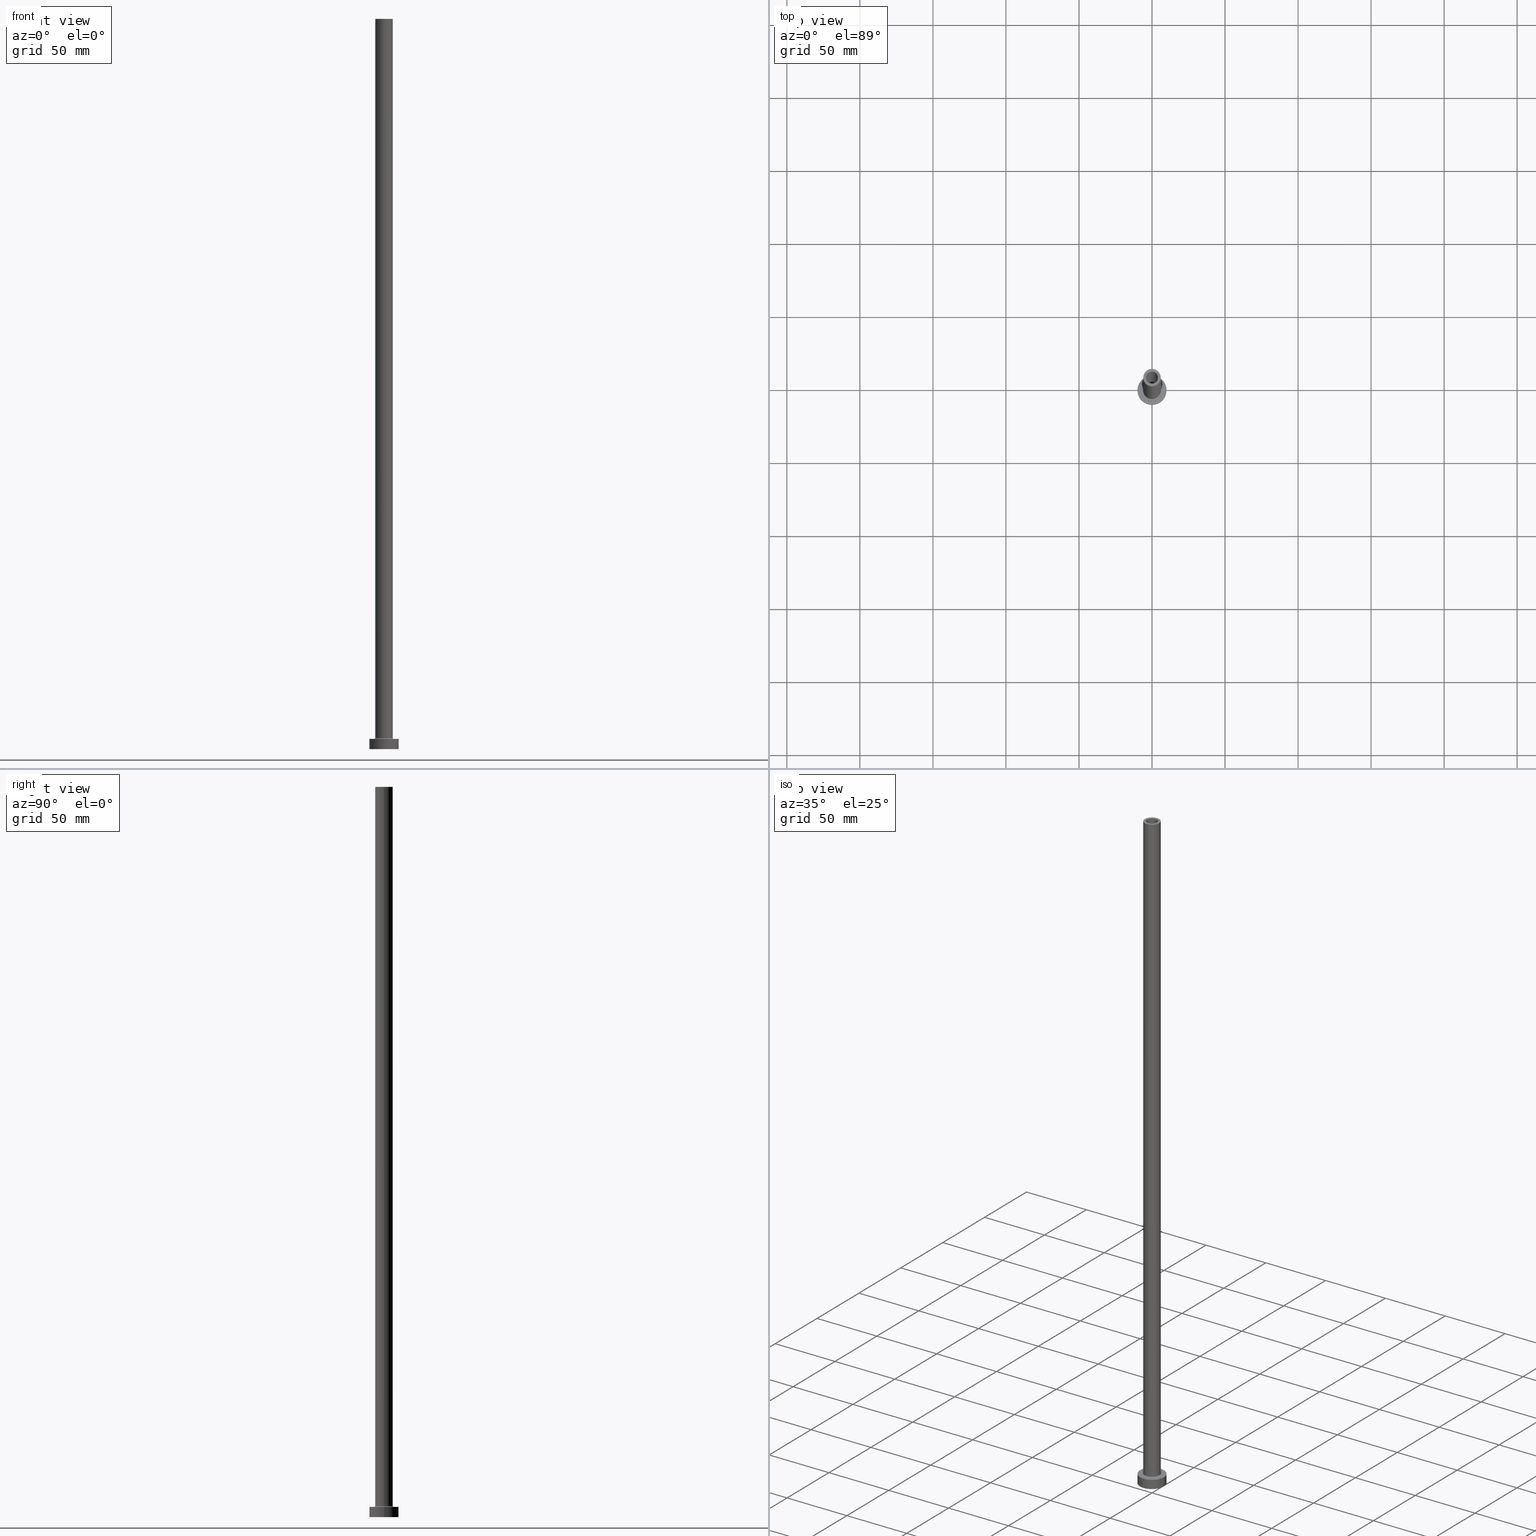
[diagram: canonical four-view strip — front | top / right | iso, engineering-drawing reading convention]
A machine part, canonical four-view strip (front | top / right | iso — engineering-drawing reading convention). The complete STEP part file that produces these views, byte-faithful:
ISO-10303-21;
HEADER;
FILE_DESCRIPTION (( 'STEP AP203' ),
    '1' );
FILE_NAME ('bfa2.STEP',
    '2023-02-13T07:39:11',
    ( '' ),
    ( '' ),
    'SwSTEP 2.0',
    'SolidWorks 2019',
    '' );
FILE_SCHEMA (( 'CONFIG_CONTROL_DESIGN' ));
ENDSEC;

DATA;
#1 = ADVANCED_FACE ( 'NONE', ( #350 ), #238, .F. ) ;
#2 = PERSON_AND_ORGANIZATION ( #321, #87 ) ;
#3 = CIRCLE ( 'NONE', #414, 4.099999999999999645 ) ;
#4 = APPLICATION_CONTEXT ( 'configuration controlled 3d designs of mechanical parts and assemblies' ) ;
#5 = EDGE_LOOP ( 'NONE', ( #51, #377, #147, #200 ) ) ;
#6 = CARTESIAN_POINT ( 'NONE',  ( 4.250000000000000000, 5.204748896376250699E-16, 467.0208152801712913 ) ) ;
#7 = DIRECTION ( 'NONE',  ( 0.000000000000000000, 0.000000000000000000, 1.000000000000000000 ) ) ;
#8 = VERTEX_POINT ( 'NONE', #110 ) ;
#9 = DIRECTION ( 'NONE',  ( 1.000000000000000000, 0.000000000000000000, 0.000000000000000000 ) ) ;
#10 = AXIS2_PLACEMENT_3D ( 'NONE', #161, #376, #201 ) ;
#11 = DIRECTION ( 'NONE',  ( -1.000000000000000000, 0.000000000000000000, 0.000000000000000000 ) ) ;
#12 = PRODUCT_DEFINITION_FORMATION_WITH_SPECIFIED_SOURCE ( 'LIBOVOLN�', '', #332, .NOT_KNOWN. ) ;
#13 = DIRECTION ( 'NONE',  ( -1.000000000000000000, 1.224646799147353454E-16, 0.000000000000000000 ) ) ;
#14 = ORIENTED_EDGE ( 'NONE', *, *, #113, .T. ) ;
#15 = CIRCLE ( 'NONE', #342, 10.00000000000000000 ) ;
#16 = DIRECTION ( 'NONE',  ( -0.000000000000000000, -0.000000000000000000, -1.000000000000000000 ) ) ;
#17 = AXIS2_PLACEMENT_3D ( 'NONE', #242, #381, #428 ) ;
#18 = EDGE_CURVE ( 'NONE', #114, #260, #39, .T. ) ;
#19 = DIRECTION ( 'NONE',  ( 1.000000000000000000, 0.000000000000000000, -0.000000000000000000 ) ) ;
#20 = AXIS2_PLACEMENT_3D ( 'NONE', #90, #129, #202 ) ;
#21 = FACE_OUTER_BOUND ( 'NONE', #187, .T. ) ;
#22 = CARTESIAN_POINT ( 'NONE',  ( 10.00000000000000000, 1.224646799147353256E-15, 7.000000000000000000 ) ) ;
#23 = LINE ( 'NONE', #66, #222 ) ;
#24 = EDGE_LOOP ( 'NONE', ( #14, #211 ) ) ;
#25 = LOCAL_TIME ( 8, 39, 11.00000000000000000, #69 ) ;
#26 = DIRECTION ( 'NONE',  ( 1.000000000000000000, 0.000000000000000000, 0.000000000000000000 ) ) ;
#27 = ORIENTED_EDGE ( 'NONE', *, *, #225, .T. ) ;
#28 = ADVANCED_FACE ( 'NONE', ( #235 ), #394, .T. ) ;
#29 = DIRECTION ( 'NONE',  ( 1.000000000000000000, 0.000000000000000000, 0.000000000000000000 ) ) ;
#30 =( NAMED_UNIT ( * ) PLANE_ANGLE_UNIT ( ) SI_UNIT ( $, .RADIAN. ) );
#31 = ORIENTED_EDGE ( 'NONE', *, *, #335, .F. ) ;
#32 = CIRCLE ( 'NONE', #151, 4.099999999999999645 ) ;
#33 = COORDINATED_UNIVERSAL_TIME_OFFSET ( 1, 0, .AHEAD. ) ;
#34 = DIRECTION ( 'NONE',  ( 1.000000000000000000, 0.000000000000000000, 0.000000000000000000 ) ) ;
#35 = ORIENTED_EDGE ( 'NONE', *, *, #347, .T. ) ;
#36 = COORDINATED_UNIVERSAL_TIME_OFFSET ( 1, 0, .AHEAD. ) ;
#37 = DIRECTION ( 'NONE',  ( 0.000000000000000000, 0.000000000000000000, 1.000000000000000000 ) ) ;
#38 = EDGE_LOOP ( 'NONE', ( #119, #75 ) ) ;
#39 = CIRCLE ( 'NONE', #280, 4.250000000000000000 ) ;
#40 = DATE_TIME_ROLE ( 'creation_date' ) ;
#41 = CARTESIAN_POINT ( 'NONE',  ( 0.000000000000000000, 0.000000000000000000, 467.0208152801712913 ) ) ;
#42 = EDGE_LOOP ( 'NONE', ( #170, #276 ) ) ;
#43 = CARTESIAN_POINT ( 'NONE',  ( 0.000000000000000000, 0.000000000000000000, 500.0000000000000000 ) ) ;
#44 = AXIS2_PLACEMENT_3D ( 'NONE', #112, #309, #418 ) ;
#45 = SHAPE_DEFINITION_REPRESENTATION ( #450, #308 ) ;
#46 = DIRECTION ( 'NONE',  ( 0.000000000000000000, 0.000000000000000000, -1.000000000000000000 ) ) ;
#47 = APPROVAL_ROLE ( '' ) ;
#48 = APPROVAL ( #208, 'NEUR�EN�' ) ;
#49 = AXIS2_PLACEMENT_3D ( 'NONE', #435, #250, #11 ) ;
#50 = CARTESIAN_POINT ( 'NONE',  ( 0.000000000000000000, 0.000000000000000000, 500.0000000000000000 ) ) ;
#51 = ORIENTED_EDGE ( 'NONE', *, *, #184, .F. ) ;
#52 = CARTESIAN_POINT ( 'NONE',  ( -4.099999999999999645, 0.000000000000000000, 500.0000000000000000 ) ) ;
#53 = CARTESIAN_POINT ( 'NONE',  ( 0.000000000000000000, 0.000000000000000000, 500.0000000000000000 ) ) ;
#54 = DIRECTION ( 'NONE',  ( -1.000000000000000000, 0.000000000000000000, 0.000000000000000000 ) ) ;
#55 = AXIS2_PLACEMENT_3D ( 'NONE', #50, #282, #54 ) ;
#56 = VERTEX_POINT ( 'NONE', #177 ) ;
#57 = CARTESIAN_POINT ( 'NONE',  ( -6.700000000000001066, 8.205133554287267548E-16, 6.999999999999992006 ) ) ;
#58 = ORIENTED_EDGE ( 'NONE', *, *, #232, .T. ) ;
#59 = DIRECTION ( 'NONE',  ( -0.000000000000000000, -0.000000000000000000, -1.000000000000000000 ) ) ;
#60 = EDGE_LOOP ( 'NONE', ( #300, #132, #27, #357 ) ) ;
#61 = CYLINDRICAL_SURFACE ( 'NONE', #20, 10.00000000000000000 ) ;
#62 = ORIENTED_EDGE ( 'NONE', *, *, #401, .T. ) ;
#63 = VECTOR ( 'NONE', #185, 1000.000000000000000 ) ;
#64 = EDGE_CURVE ( 'NONE', #56, #8, #15, .T. ) ;
#65 = DIRECTION ( 'NONE',  ( 0.000000000000000000, 0.000000000000000000, -1.000000000000000000 ) ) ;
#66 = CARTESIAN_POINT ( 'NONE',  ( 4.099999999999999645, 5.021051876504146399E-16, 500.0000000000000000 ) ) ;
#67 = CIRCLE ( 'NONE', #318, 6.000000000000000888 ) ;
#68 = CC_DESIGN_PERSON_AND_ORGANIZATION_ASSIGNMENT ( #241, #180, ( #152 ) ) ;
#69 = COORDINATED_UNIVERSAL_TIME_OFFSET ( 1, 0, .AHEAD. ) ;
#70 = DIRECTION ( 'NONE',  ( 1.000000000000000000, 0.000000000000000000, 0.000000000000000000 ) ) ;
#71 = CIRCLE ( 'NONE', #108, 10.00000000000000000 ) ;
#72 = DATE_AND_TIME ( #419, #207 ) ;
#73 = CARTESIAN_POINT ( 'NONE',  ( 4.099999999999999645, 5.021051876504146399E-16, 500.0000000000000000 ) ) ;
#74 = EDGE_CURVE ( 'NONE', #228, #421, #247, .T. ) ;
#75 = ORIENTED_EDGE ( 'NONE', *, *, #184, .T. ) ;
#76 = ORIENTED_EDGE ( 'NONE', *, *, #256, .T. ) ;
#77 = EDGE_LOOP ( 'NONE', ( #209, #193 ) ) ;
#78 = LINE ( 'NONE', #6, #178 ) ;
#79 = ORIENTED_EDGE ( 'NONE', *, *, #256, .F. ) ;
#80 = EDGE_CURVE ( 'NONE', #260, #114, #389, .T. ) ;
#81 = ORIENTED_EDGE ( 'NONE', *, *, #82, .T. ) ;
#82 = EDGE_CURVE ( 'NONE', #455, #203, #67, .T. ) ;
#83 = DIRECTION ( 'NONE',  ( 0.000000000000000000, 0.000000000000000000, 1.000000000000000000 ) ) ;
#84 = PLANE ( 'NONE',  #358 ) ;
#85 = AXIS2_PLACEMENT_3D ( 'NONE', #53, #189, #155 ) ;
#86 = DIRECTION ( 'NONE',  ( 1.000000000000000000, 0.000000000000000000, 0.000000000000000000 ) ) ;
#87 = ORGANIZATION ( 'NEUR�EN�', 'NEUR�EN�', '' ) ;
#88 = LINE ( 'NONE', #156, #272 ) ;
#89 = CARTESIAN_POINT ( 'NONE',  ( 0.000000000000000000, 0.000000000000000000, 7.000000000000000000 ) ) ;
#90 = CARTESIAN_POINT ( 'NONE',  ( 0.000000000000000000, 0.000000000000000000, 7.000000000000000000 ) ) ;
#91 = CIRCLE ( 'NONE', #287, 0.7000000000000000666 ) ;
#92 = APPROVAL_PERSON_ORGANIZATION ( #427, #360, #47 ) ;
#93 = CARTESIAN_POINT ( 'NONE',  ( 0.000000000000000000, 0.000000000000000000, 500.0000000000000000 ) ) ;
#94 = ORIENTED_EDGE ( 'NONE', *, *, #429, .F. ) ;
#95 = DIRECTION ( 'NONE',  ( 0.000000000000000000, 0.000000000000000000, 1.000000000000000000 ) ) ;
#96 = ORIENTED_EDGE ( 'NONE', *, *, #442, .T. ) ;
#97 = FACE_OUTER_BOUND ( 'NONE', #149, .T. ) ;
#98 = ORIENTED_EDGE ( 'NONE', *, *, #123, .T. ) ;
#99 = AXIS2_PLACEMENT_3D ( 'NONE', #383, #457, #314 ) ;
#100 = CC_DESIGN_PERSON_AND_ORGANIZATION_ASSIGNMENT ( #454, #266, ( #332 ) ) ;
#101 =( GEOMETRIC_REPRESENTATION_CONTEXT ( 3 ) GLOBAL_UNCERTAINTY_ASSIGNED_CONTEXT ( ( #236 ) ) GLOBAL_UNIT_ASSIGNED_CONTEXT ( ( #311, #30, #344 ) ) REPRESENTATION_CONTEXT ( 'NONE', 'WORKASPACE' ) );
#102 = DIRECTION ( 'NONE',  ( 1.000000000000000000, 0.000000000000000000, 0.000000000000000000 ) ) ;
#103 = ORIENTED_EDGE ( 'NONE', *, *, #18, .T. ) ;
#104 = APPROVAL_ROLE ( '' ) ;
#105 = AXIS2_PLACEMENT_3D ( 'NONE', #279, #271, #174 ) ;
#106 = EDGE_LOOP ( 'NONE', ( #79, #348, #327, #130 ) ) ;
#107 = ORIENTED_EDGE ( 'NONE', *, *, #113, .F. ) ;
#108 = AXIS2_PLACEMENT_3D ( 'NONE', #396, #83, #329 ) ;
#109 = PERSON_AND_ORGANIZATION ( #321, #87 ) ;
#110 = CARTESIAN_POINT ( 'NONE',  ( -10.00000000000000000, 0.000000000000000000, 0.000000000000000000 ) ) ;
#111 = VERTEX_POINT ( 'NONE', #458 ) ;
#112 = CARTESIAN_POINT ( 'NONE',  ( 0.000000000000000000, 0.000000000000000000, 7.699999999999985079 ) ) ;
#113 = EDGE_CURVE ( 'NONE', #340, #111, #403, .T. ) ;
#114 = VERTEX_POINT ( 'NONE', #268 ) ;
#115 = AXIS2_PLACEMENT_3D ( 'NONE', #120, #248, #86 ) ;
#116 = COORDINATED_UNIVERSAL_TIME_OFFSET ( 1, 0, .AHEAD. ) ;
#117 = DIRECTION ( 'NONE',  ( 0.000000000000000000, 0.000000000000000000, 1.000000000000000000 ) ) ;
#118 = CARTESIAN_POINT ( 'NONE',  ( 6.700000000000001066, 0.000000000000000000, 6.999999999999992006 ) ) ;
#119 = ORIENTED_EDGE ( 'NONE', *, *, #262, .T. ) ;
#120 = CARTESIAN_POINT ( 'NONE',  ( 0.000000000000000000, 0.000000000000000000, 0.000000000000000000 ) ) ;
#121 = FACE_BOUND ( 'NONE', #24, .T. ) ;
#122 = DIRECTION ( 'NONE',  ( 1.224646799147353207E-16, 1.000000000000000000, -0.000000000000000000 ) ) ;
#123 = EDGE_CURVE ( 'NONE', #416, #373, #141, .T. ) ;
#124 = DIRECTION ( 'NONE',  ( 0.000000000000000000, 0.000000000000000000, -1.000000000000000000 ) ) ;
#125 = FACE_BOUND ( 'NONE', #173, .T. ) ;
#126 = TOROIDAL_SURFACE ( 'NONE', #10, 6.700000000000001066, 0.6999999999999999556 ) ;
#127 = CC_DESIGN_APPROVAL ( #382, ( #392 ) ) ;
#128 = ADVANCED_FACE ( 'NONE', ( #215 ), #305, .T. ) ;
#129 = DIRECTION ( 'NONE',  ( -0.000000000000000000, -0.000000000000000000, -1.000000000000000000 ) ) ;
#130 = ORIENTED_EDGE ( 'NONE', *, *, #323, .F. ) ;
#131 = AXIS2_PLACEMENT_3D ( 'NONE', #346, #143, #34 ) ;
#132 = ORIENTED_EDGE ( 'NONE', *, *, #315, .T. ) ;
#133 = CARTESIAN_POINT ( 'NONE',  ( -10.00000000000000000, 0.000000000000000000, 7.000000000000000000 ) ) ;
#134 = ORIENTED_EDGE ( 'NONE', *, *, #295, .T. ) ;
#135 = CIRCLE ( 'NONE', #190, 4.250000000000000000 ) ;
#136 = APPROVAL_PERSON_ORGANIZATION ( #2, #382, #352 ) ;
#137 = APPROVAL_DATE_TIME ( #386, #382 ) ;
#138 = ORIENTED_EDGE ( 'NONE', *, *, #64, .F. ) ;
#139 = DIRECTION ( 'NONE',  ( 0.000000000000000000, 0.000000000000000000, -1.000000000000000000 ) ) ;
#140 = DIRECTION ( 'NONE',  ( -0.000000000000000000, -0.000000000000000000, -1.000000000000000000 ) ) ;
#141 = CIRCLE ( 'NONE', #44, 6.000000000000000888 ) ;
#142 = PERSON_AND_ORGANIZATION ( #321, #87 ) ;
#143 = DIRECTION ( 'NONE',  ( -0.000000000000000000, -0.000000000000000000, -1.000000000000000000 ) ) ;
#144 = VERTEX_POINT ( 'NONE', #73 ) ;
#145 = CALENDAR_DATE ( 2023, 13, 2 ) ;
#146 = ADVANCED_FACE ( 'NONE', ( #420 ), #399, .F. ) ;
#147 = ORIENTED_EDGE ( 'NONE', *, *, #64, .T. ) ;
#148 = DIRECTION ( 'NONE',  ( -1.000000000000000000, 0.000000000000000000, 0.000000000000000000 ) ) ;
#149 = EDGE_LOOP ( 'NONE', ( #273, #337, #35, #405 ) ) ;
#150 = DIRECTION ( 'NONE',  ( 1.000000000000000000, 0.000000000000000000, 0.000000000000000000 ) ) ;
#151 = AXIS2_PLACEMENT_3D ( 'NONE', #446, #223, #263 ) ;
#152 = SECURITY_CLASSIFICATION ( '', '', #380 ) ;
#153 = DIRECTION ( 'NONE',  ( 0.000000000000000000, 0.000000000000000000, 1.000000000000000000 ) ) ;
#154 = ADVANCED_FACE ( 'NONE', ( #312 ), #367, .F. ) ;
#155 = DIRECTION ( 'NONE',  ( 1.000000000000000000, 0.000000000000000000, 0.000000000000000000 ) ) ;
#156 = CARTESIAN_POINT ( 'NONE',  ( 6.000000000000000888, 7.347880794884120722E-16, 500.0000000000000000 ) ) ;
#157 = ORIENTED_EDGE ( 'NONE', *, *, #188, .F. ) ;
#158 = VECTOR ( 'NONE', #59, 1000.000000000000000 ) ;
#159 = PLANE ( 'NONE',  #439 ) ;
#160 = ADVANCED_FACE ( 'NONE', ( #246 ), #398, .F. ) ;
#161 = CARTESIAN_POINT ( 'NONE',  ( 0.000000000000000000, 0.000000000000000000, 7.699999999999985079 ) ) ;
#162 = CC_DESIGN_PERSON_AND_ORGANIZATION_ASSIGNMENT ( #176, #233, ( #12 ) ) ;
#163 = LINE ( 'NONE', #370, #158 ) ;
#164 = ORIENTED_EDGE ( 'NONE', *, *, #335, .T. ) ;
#165 = DIRECTION ( 'NONE',  ( 1.000000000000000000, 0.000000000000000000, 0.000000000000000000 ) ) ;
#166 = CIRCLE ( 'NONE', #257, 6.000000000000000888 ) ;
#167 = ORIENTED_EDGE ( 'NONE', *, *, #323, .T. ) ;
#168 = CYLINDRICAL_SURFACE ( 'NONE', #206, 4.099999999999999645 ) ;
#169 = LINE ( 'NONE', #299, #423 ) ;
#170 = ORIENTED_EDGE ( 'NONE', *, *, #80, .F. ) ;
#171 = DESIGN_CONTEXT ( 'detailed design', #4, 'design' ) ;
#172 = APPROVAL_STATUS ( 'not_yet_approved' ) ;
#173 = EDGE_LOOP ( 'NONE', ( #213, #31 ) ) ;
#174 = DIRECTION ( 'NONE',  ( 1.000000000000000000, 0.000000000000000000, 0.000000000000000000 ) ) ;
#175 = DIRECTION ( 'NONE',  ( 1.000000000000000000, 0.000000000000000000, 0.000000000000000000 ) ) ;
#176 = PERSON_AND_ORGANIZATION ( #321, #87 ) ;
#177 = CARTESIAN_POINT ( 'NONE',  ( 10.00000000000000000, 1.224646799147353256E-15, 0.000000000000000000 ) ) ;
#178 = VECTOR ( 'NONE', #139, 1000.000000000000000 ) ;
#179 = EDGE_CURVE ( 'NONE', #455, #416, #88, .T. ) ;
#180 = PERSON_AND_ORGANIZATION_ROLE ( 'classification_officer' ) ;
#181 = EDGE_LOOP ( 'NONE', ( #363, #164, #58, #157 ) ) ;
#182 = CARTESIAN_POINT ( 'NONE',  ( 0.000000000000000000, 0.000000000000000000, 0.000000000000000000 ) ) ;
#183 = PLANE ( 'NONE',  #356 ) ;
#184 = EDGE_CURVE ( 'NONE', #343, #334, #71, .T. ) ;
#185 = DIRECTION ( 'NONE',  ( 0.000000000000000000, 0.000000000000000000, -1.000000000000000000 ) ) ;
#186 = FACE_BOUND ( 'NONE', #42, .T. ) ;
#187 = EDGE_LOOP ( 'NONE', ( #413, #62, #107, #408 ) ) ;
#188 = EDGE_CURVE ( 'NONE', #111, #340, #368, .T. ) ;
#189 = DIRECTION ( 'NONE',  ( 0.000000000000000000, 0.000000000000000000, 1.000000000000000000 ) ) ;
#190 = AXIS2_PLACEMENT_3D ( 'NONE', #407, #198, #224 ) ;
#191 = CC_DESIGN_APPROVAL ( #48, ( #12 ) ) ;
#192 = DIRECTION ( 'NONE',  ( 1.000000000000000000, 0.000000000000000000, 0.000000000000000000 ) ) ;
#193 = ORIENTED_EDGE ( 'NONE', *, *, #315, .F. ) ;
#194 = CARTESIAN_POINT ( 'NONE',  ( -4.099999999999999645, 0.000000000000000000, 500.0000000000000000 ) ) ;
#195 = CARTESIAN_POINT ( 'NONE',  ( -4.099999999999999645, 0.000000000000000000, 455.0000000000000000 ) ) ;
#196 = ORIENTED_EDGE ( 'NONE', *, *, #295, .F. ) ;
#197 = ADVANCED_FACE ( 'NONE', ( #400, #432 ), #84, .T. ) ;
#198 = DIRECTION ( 'NONE',  ( 0.000000000000000000, 0.000000000000000000, 1.000000000000000000 ) ) ;
#199 = AXIS2_PLACEMENT_3D ( 'NONE', #330, #290, #26 ) ;
#200 = ORIENTED_EDGE ( 'NONE', *, *, #347, .F. ) ;
#201 = DIRECTION ( 'NONE',  ( 1.000000000000000000, 0.000000000000000000, 0.000000000000000000 ) ) ;
#202 = DIRECTION ( 'NONE',  ( -1.000000000000000000, 0.000000000000000000, 0.000000000000000000 ) ) ;
#203 = VERTEX_POINT ( 'NONE', #216 ) ;
#204 = DATE_TIME_ROLE ( 'classification_date' ) ;
#205 = ORIENTED_EDGE ( 'NONE', *, *, #179, .F. ) ;
#206 = AXIS2_PLACEMENT_3D ( 'NONE', #333, #293, #369 ) ;
#207 = LOCAL_TIME ( 8, 39, 11.00000000000000000, #349 ) ;
#208 = APPROVAL_STATUS ( 'not_yet_approved' ) ;
#209 = ORIENTED_EDGE ( 'NONE', *, *, #354, .F. ) ;
#210 = VERTEX_POINT ( 'NONE', #362 ) ;
#211 = ORIENTED_EDGE ( 'NONE', *, *, #188, .T. ) ;
#212 = CALENDAR_DATE ( 2023, 13, 2 ) ;
#213 = ORIENTED_EDGE ( 'NONE', *, *, #410, .F. ) ;
#214 = AXIS2_PLACEMENT_3D ( 'NONE', #89, #153, #283 ) ;
#215 = FACE_OUTER_BOUND ( 'NONE', #251, .T. ) ;
#216 = CARTESIAN_POINT ( 'NONE',  ( -6.000000000000000888, 0.000000000000000000, 500.0000000000000000 ) ) ;
#217 = DIRECTION ( 'NONE',  ( 0.000000000000000000, 0.000000000000000000, 1.000000000000000000 ) ) ;
#218 = CIRCLE ( 'NONE', #199, 4.250000000000000000 ) ;
#219 = LINE ( 'NONE', #324, #264 ) ;
#220 = CARTESIAN_POINT ( 'NONE',  ( 0.000000000000000000, 0.000000000000000000, 0.000000000000000000 ) ) ;
#221 = CARTESIAN_POINT ( 'NONE',  ( 0.000000000000000000, 0.000000000000000000, 7.699999999999985079 ) ) ;
#222 = VECTOR ( 'NONE', #65, 1000.000000000000000 ) ;
#223 = DIRECTION ( 'NONE',  ( 0.000000000000000000, 0.000000000000000000, 1.000000000000000000 ) ) ;
#224 = DIRECTION ( 'NONE',  ( 1.000000000000000000, 0.000000000000000000, 0.000000000000000000 ) ) ;
#225 = EDGE_CURVE ( 'NONE', #226, #260, #365, .T. ) ;
#226 = VERTEX_POINT ( 'NONE', #254 ) ;
#227 = DIRECTION ( 'NONE',  ( -0.000000000000000000, -0.000000000000000000, -1.000000000000000000 ) ) ;
#228 = VERTEX_POINT ( 'NONE', #118 ) ;
#229 = DIRECTION ( 'NONE',  ( -0.000000000000000000, -0.000000000000000000, -1.000000000000000000 ) ) ;
#230 = DIRECTION ( 'NONE',  ( 0.000000000000000000, 0.000000000000000000, 1.000000000000000000 ) ) ;
#231 = EDGE_LOOP ( 'NONE', ( #351, #167 ) ) ;
#232 = EDGE_CURVE ( 'NONE', #316, #340, #361, .T. ) ;
#233 = PERSON_AND_ORGANIZATION_ROLE ( 'design_supplier' ) ;
#234 = AXIS2_PLACEMENT_3D ( 'NONE', #387, #7, #9 ) ;
#235 = FACE_OUTER_BOUND ( 'NONE', #447, .T. ) ;
#236 = UNCERTAINTY_MEASURE_WITH_UNIT (LENGTH_MEASURE( 1.000000000000000082E-05 ), #311, 'distance_accuracy_value', 'NONE');
#237 = APPLICATION_PROTOCOL_DEFINITION ( 'international standard', 'config_control_design', 1994, #298 ) ;
#238 = CYLINDRICAL_SURFACE ( 'NONE', #459, 4.250000000000000000 ) ;
#239 = CIRCLE ( 'NONE', #431, 6.700000000000001066 ) ;
#240 = DIRECTION ( 'NONE',  ( 1.000000000000000000, 0.000000000000000000, 0.000000000000000000 ) ) ;
#241 = PERSON_AND_ORGANIZATION ( #321, #87 ) ;
#242 = CARTESIAN_POINT ( 'NONE',  ( 0.000000000000000000, 0.000000000000000000, 500.0000000000000000 ) ) ;
#243 = DIRECTION ( 'NONE',  ( 0.000000000000000000, 0.000000000000000000, -1.000000000000000000 ) ) ;
#244 = CIRCLE ( 'NONE', #85, 6.000000000000000888 ) ;
#245 = CARTESIAN_POINT ( 'NONE',  ( 0.000000000000000000, 0.000000000000000000, 7.000000000000000000 ) ) ;
#246 = FACE_OUTER_BOUND ( 'NONE', #60, .T. ) ;
#247 = CIRCLE ( 'NONE', #131, 6.700000000000001066 ) ;
#248 = DIRECTION ( 'NONE',  ( 0.000000000000000000, 0.000000000000000000, 1.000000000000000000 ) ) ;
#249 = AXIS2_PLACEMENT_3D ( 'NONE', #461, #140, #269 ) ;
#250 = DIRECTION ( 'NONE',  ( 0.000000000000000000, 0.000000000000000000, -1.000000000000000000 ) ) ;
#251 = EDGE_LOOP ( 'NONE', ( #205, #426, #134, #96 ) ) ;
#252 = ADVANCED_FACE ( 'NONE', ( #186, #284 ), #183, .F. ) ;
#253 = CC_DESIGN_PERSON_AND_ORGANIZATION_ASSIGNMENT ( #109, #355, ( #12 ) ) ;
#254 = CARTESIAN_POINT ( 'NONE',  ( -4.250000000000000000, 0.000000000000000000, 455.0000000000000000 ) ) ;
#255 = DIRECTION ( 'NONE',  ( -0.000000000000000000, -0.000000000000000000, -1.000000000000000000 ) ) ;
#256 = EDGE_CURVE ( 'NONE', #373, #421, #91, .T. ) ;
#257 = AXIS2_PLACEMENT_3D ( 'NONE', #412, #339, #29 ) ;
#258 = FACE_OUTER_BOUND ( 'NONE', #391, .T. ) ;
#259 = CARTESIAN_POINT ( 'NONE',  ( 6.000000000000000888, 7.347880794884120722E-16, 7.699999999999985079 ) ) ;
#260 = VERTEX_POINT ( 'NONE', #402 ) ;
#261 = CARTESIAN_POINT ( 'NONE',  ( 6.700000000000001066, 0.000000000000000000, 7.699999999999985079 ) ) ;
#262 = EDGE_CURVE ( 'NONE', #334, #343, #313, .T. ) ;
#263 = DIRECTION ( 'NONE',  ( 1.000000000000000000, 0.000000000000000000, 0.000000000000000000 ) ) ;
#264 = VECTOR ( 'NONE', #438, 1000.000000000000000 ) ;
#265 = EDGE_CURVE ( 'NONE', #203, #455, #244, .T. ) ;
#266 = PERSON_AND_ORGANIZATION_ROLE ( 'design_owner' ) ;
#267 = PRODUCT_RELATED_PRODUCT_CATEGORY ( 'detail', '', ( #332 ) ) ;
#268 = CARTESIAN_POINT ( 'NONE',  ( 4.250000000000000000, 5.204748896376250699E-16, 0.000000000000000000 ) ) ;
#269 = DIRECTION ( 'NONE',  ( -1.000000000000000000, 0.000000000000000000, 0.000000000000000000 ) ) ;
#270 = DATE_AND_TIME ( #212, #303 ) ;
#271 = DIRECTION ( 'NONE',  ( -0.000000000000000000, -0.000000000000000000, -1.000000000000000000 ) ) ;
#272 = VECTOR ( 'NONE', #16, 1000.000000000000000 ) ;
#273 = ORIENTED_EDGE ( 'NONE', *, *, #452, .F. ) ;
#274 = CC_DESIGN_SECURITY_CLASSIFICATION ( #152, ( #12 ) ) ;
#275 = APPLICATION_PROTOCOL_DEFINITION ( 'international standard', 'config_control_design', 1994, #4 ) ;
#276 = ORIENTED_EDGE ( 'NONE', *, *, #18, .F. ) ;
#277 = ORIENTED_EDGE ( 'NONE', *, *, #354, .T. ) ;
#278 = APPROVAL_STATUS ( 'not_yet_approved' ) ;
#279 = CARTESIAN_POINT ( 'NONE',  ( 0.000000000000000000, 0.000000000000000000, 0.000000000000000000 ) ) ;
#280 = AXIS2_PLACEMENT_3D ( 'NONE', #182, #317, #70 ) ;
#281 = EDGE_CURVE ( 'NONE', #8, #56, #302, .T. ) ;
#282 = DIRECTION ( 'NONE',  ( 0.000000000000000000, 0.000000000000000000, -1.000000000000000000 ) ) ;
#283 = DIRECTION ( 'NONE',  ( 1.000000000000000000, 0.000000000000000000, 0.000000000000000000 ) ) ;
#284 = FACE_OUTER_BOUND ( 'NONE', #297, .T. ) ;
#285 = DIRECTION ( 'NONE',  ( 0.000000000000000000, 0.000000000000000000, 1.000000000000000000 ) ) ;
#286 = ORIENTED_EDGE ( 'NONE', *, *, #74, .F. ) ;
#287 = AXIS2_PLACEMENT_3D ( 'NONE', #397, #122, #13 ) ;
#288 = CC_DESIGN_DATE_AND_TIME_ASSIGNMENT ( #390, #204, ( #152 ) ) ;
#289 = CARTESIAN_POINT ( 'NONE',  ( 0.000000000000000000, 0.000000000000000000, 455.0000000000000000 ) ) ;
#290 = DIRECTION ( 'NONE',  ( 0.000000000000000000, 0.000000000000000000, 1.000000000000000000 ) ) ;
#291 = CARTESIAN_POINT ( 'NONE',  ( 0.000000000000000000, 0.000000000000000000, 7.000000000000000000 ) ) ;
#292 = CC_DESIGN_APPROVAL ( #360, ( #152 ) ) ;
#293 = DIRECTION ( 'NONE',  ( 0.000000000000000000, 0.000000000000000000, -1.000000000000000000 ) ) ;
#294 = ORIENTED_EDGE ( 'NONE', *, *, #179, .T. ) ;
#295 = EDGE_CURVE ( 'NONE', #203, #373, #219, .T. ) ;
#296 = DIRECTION ( 'NONE',  ( 1.000000000000000000, 0.000000000000000000, -0.000000000000000000 ) ) ;
#297 = EDGE_LOOP ( 'NONE', ( #449, #138 ) ) ;
#298 = APPLICATION_CONTEXT ( 'configuration controlled 3d designs of mechanical parts and assemblies' ) ;
#299 = CARTESIAN_POINT ( 'NONE',  ( 10.00000000000000000, 1.224646799147353256E-15, 7.000000000000000000 ) ) ;
#300 = ORIENTED_EDGE ( 'NONE', *, *, #456, .F. ) ;
#301 = MECHANICAL_CONTEXT ( 'NONE', #298, 'mechanical' ) ;
#302 = CIRCLE ( 'NONE', #115, 10.00000000000000000 ) ;
#303 = LOCAL_TIME ( 8, 39, 11.00000000000000000, #36 ) ;
#304 = CALENDAR_DATE ( 2023, 13, 2 ) ;
#305 = CYLINDRICAL_SURFACE ( 'NONE', #249, 6.000000000000000888 ) ;
#306 = ADVANCED_FACE ( 'NONE', ( #121, #326 ), #159, .F. ) ;
#307 = CLOSED_SHELL ( 'NONE', ( #388, #1, #434, #28, #374, #338, #197, #252, #128, #424, #146, #160, #306, #154 ) ) ;
#308 = ADVANCED_BREP_SHAPE_REPRESENTATION ( 'bfa2', ( #440, #99 ), #101 ) ;
#309 = DIRECTION ( 'NONE',  ( 0.000000000000000000, 0.000000000000000000, 1.000000000000000000 ) ) ;
#310 = ORIENTED_EDGE ( 'NONE', *, *, #442, .F. ) ;
#311 =( LENGTH_UNIT ( ) NAMED_UNIT ( * ) SI_UNIT ( .MILLI., .METRE. ) );
#312 = FACE_OUTER_BOUND ( 'NONE', #181, .T. ) ;
#313 = CIRCLE ( 'NONE', #214, 10.00000000000000000 ) ;
#314 = DIRECTION ( 'NONE',  ( 1.000000000000000000, 0.000000000000000000, 0.000000000000000000 ) ) ;
#315 = EDGE_CURVE ( 'NONE', #210, #226, #218, .T. ) ;
#316 = VERTEX_POINT ( 'NONE', #194 ) ;
#317 = DIRECTION ( 'NONE',  ( -0.000000000000000000, -0.000000000000000000, -1.000000000000000000 ) ) ;
#318 = AXIS2_PLACEMENT_3D ( 'NONE', #43, #37, #175 ) ;
#319 = CARTESIAN_POINT ( 'NONE',  ( -4.250000000000000000, 0.000000000000000000, 467.0208152801712913 ) ) ;
#320 = AXIS2_PLACEMENT_3D ( 'NONE', #448, #230, #296 ) ;
#321 = PERSON ( 'NEUR�EN�', 'NEUR�EN�', 'NEUR�EN�', ('NEUR�EN�'), ('NEUR�EN�'), ('NEUR�EN�') ) ;
#322 = DIRECTION ( 'NONE',  ( 1.000000000000000000, 0.000000000000000000, -0.000000000000000000 ) ) ;
#323 = EDGE_CURVE ( 'NONE', #421, #228, #239, .T. ) ;
#324 = CARTESIAN_POINT ( 'NONE',  ( -6.000000000000000888, 0.000000000000000000, 500.0000000000000000 ) ) ;
#325 = APPROVAL_DATE_TIME ( #395, #360 ) ;
#326 = FACE_OUTER_BOUND ( 'NONE', #77, .T. ) ;
#327 = ORIENTED_EDGE ( 'NONE', *, *, #429, .T. ) ;
#328 = AXIS2_PLACEMENT_3D ( 'NONE', #451, #227, #378 ) ;
#329 = DIRECTION ( 'NONE',  ( 1.000000000000000000, 0.000000000000000000, 0.000000000000000000 ) ) ;
#330 = CARTESIAN_POINT ( 'NONE',  ( 0.000000000000000000, 0.000000000000000000, 455.0000000000000000 ) ) ;
#331 = ORIENTED_EDGE ( 'NONE', *, *, #225, .F. ) ;
#332 = PRODUCT ( 'bfa2', 'bfa2', '', ( #301 ) ) ;
#333 = CARTESIAN_POINT ( 'NONE',  ( 0.000000000000000000, 0.000000000000000000, 500.0000000000000000 ) ) ;
#334 = VERTEX_POINT ( 'NONE', #133 ) ;
#335 = EDGE_CURVE ( 'NONE', #144, #316, #3, .T. ) ;
#336 = CARTESIAN_POINT ( 'NONE',  ( -6.000000000000000888, 0.000000000000000000, 7.699999999999985079 ) ) ;
#337 = ORIENTED_EDGE ( 'NONE', *, *, #262, .F. ) ;
#338 = ADVANCED_FACE ( 'NONE', ( #97 ), #404, .T. ) ;
#339 = DIRECTION ( 'NONE',  ( 0.000000000000000000, 0.000000000000000000, 1.000000000000000000 ) ) ;
#340 = VERTEX_POINT ( 'NONE', #195 ) ;
#341 = CC_DESIGN_PERSON_AND_ORGANIZATION_ASSIGNMENT ( #142, #417, ( #392 ) ) ;
#342 = AXIS2_PLACEMENT_3D ( 'NONE', #353, #425, #240 ) ;
#343 = VERTEX_POINT ( 'NONE', #22 ) ;
#344 =( NAMED_UNIT ( * ) SI_UNIT ( $, .STERADIAN. ) SOLID_ANGLE_UNIT ( ) );
#345 = LOCAL_TIME ( 8, 39, 11.00000000000000000, #116 ) ;
#346 = CARTESIAN_POINT ( 'NONE',  ( 0.000000000000000000, 0.000000000000000000, 7.000000000000000000 ) ) ;
#347 = EDGE_CURVE ( 'NONE', #334, #8, #163, .T. ) ;
#348 = ORIENTED_EDGE ( 'NONE', *, *, #123, .F. ) ;
#349 = COORDINATED_UNIVERSAL_TIME_OFFSET ( 1, 0, .AHEAD. ) ;
#350 = FACE_OUTER_BOUND ( 'NONE', #359, .T. ) ;
#351 = ORIENTED_EDGE ( 'NONE', *, *, #74, .T. ) ;
#352 = APPROVAL_ROLE ( '' ) ;
#353 = CARTESIAN_POINT ( 'NONE',  ( 0.000000000000000000, 0.000000000000000000, 0.000000000000000000 ) ) ;
#354 = EDGE_CURVE ( 'NONE', #226, #210, #135, .T. ) ;
#355 = PERSON_AND_ORGANIZATION_ROLE ( 'creator' ) ;
#356 = AXIS2_PLACEMENT_3D ( 'NONE', #220, #285, #322 ) ;
#357 = ORIENTED_EDGE ( 'NONE', *, *, #80, .T. ) ;
#358 = AXIS2_PLACEMENT_3D ( 'NONE', #245, #217, #19 ) ;
#359 = EDGE_LOOP ( 'NONE', ( #277, #371, #103, #331 ) ) ;
#360 = APPROVAL ( #278, 'NEUR�EN�' ) ;
#361 = LINE ( 'NONE', #52, #384 ) ;
#362 = CARTESIAN_POINT ( 'NONE',  ( 4.250000000000000000, 5.204748896376250699E-16, 455.0000000000000000 ) ) ;
#363 = ORIENTED_EDGE ( 'NONE', *, *, #401, .F. ) ;
#364 = AXIS2_PLACEMENT_3D ( 'NONE', #437, #366, #150 ) ;
#365 = LINE ( 'NONE', #319, #63 ) ;
#366 = DIRECTION ( 'NONE',  ( 0.000000000000000000, 0.000000000000000000, 1.000000000000000000 ) ) ;
#367 = CYLINDRICAL_SURFACE ( 'NONE', #55, 4.099999999999999645 ) ;
#368 = CIRCLE ( 'NONE', #364, 4.099999999999999645 ) ;
#369 = DIRECTION ( 'NONE',  ( -1.000000000000000000, 0.000000000000000000, 0.000000000000000000 ) ) ;
#370 = CARTESIAN_POINT ( 'NONE',  ( -10.00000000000000000, 0.000000000000000000, 7.000000000000000000 ) ) ;
#371 = ORIENTED_EDGE ( 'NONE', *, *, #456, .T. ) ;
#372 = DIRECTION ( 'NONE',  ( 0.000000000000000000, -1.000000000000000000, 0.000000000000000000 ) ) ;
#373 = VERTEX_POINT ( 'NONE', #336 ) ;
#374 = ADVANCED_FACE ( 'NONE', ( #445 ), #61, .T. ) ;
#375 = AXIS2_PLACEMENT_3D ( 'NONE', #261, #372, #124 ) ;
#376 = DIRECTION ( 'NONE',  ( 0.000000000000000000, 0.000000000000000000, 1.000000000000000000 ) ) ;
#377 = ORIENTED_EDGE ( 'NONE', *, *, #452, .T. ) ;
#378 = DIRECTION ( 'NONE',  ( -1.000000000000000000, 0.000000000000000000, 0.000000000000000000 ) ) ;
#379 = EDGE_LOOP ( 'NONE', ( #411, #81 ) ) ;
#380 = SECURITY_CLASSIFICATION_LEVEL ( 'unclassified' ) ;
#381 = DIRECTION ( 'NONE',  ( -0.000000000000000000, -0.000000000000000000, -1.000000000000000000 ) ) ;
#382 = APPROVAL ( #172, 'NEUR�EN�' ) ;
#383 = CARTESIAN_POINT ( 'NONE',  ( 0.000000000000000000, 0.000000000000000000, 0.000000000000000000 ) ) ;
#384 = VECTOR ( 'NONE', #46, 1000.000000000000000 ) ;
#385 = ORIENTED_EDGE ( 'NONE', *, *, #82, .F. ) ;
#386 = DATE_AND_TIME ( #304, #453 ) ;
#387 = CARTESIAN_POINT ( 'NONE',  ( 0.000000000000000000, 0.000000000000000000, 455.0000000000000000 ) ) ;
#388 = ADVANCED_FACE ( 'NONE', ( #21 ), #168, .F. ) ;
#389 = CIRCLE ( 'NONE', #105, 4.250000000000000000 ) ;
#390 = DATE_AND_TIME ( #145, #25 ) ;
#391 = EDGE_LOOP ( 'NONE', ( #310, #76, #286, #94 ) ) ;
#392 = PRODUCT_DEFINITION ( 'NEZN�M�', '', #12, #171 ) ;
#393 = AXIS2_PLACEMENT_3D ( 'NONE', #221, #117, #192 ) ;
#394 = CYLINDRICAL_SURFACE ( 'NONE', #17, 6.000000000000000888 ) ;
#395 = DATE_AND_TIME ( #436, #345 ) ;
#396 = CARTESIAN_POINT ( 'NONE',  ( 0.000000000000000000, 0.000000000000000000, 7.000000000000000000 ) ) ;
#397 = CARTESIAN_POINT ( 'NONE',  ( -6.700000000000001066, 8.205133554287267548E-16, 7.699999999999985079 ) ) ;
#398 = CYLINDRICAL_SURFACE ( 'NONE', #49, 4.250000000000000000 ) ;
#399 = TOROIDAL_SURFACE ( 'NONE', #393, 6.700000000000001066, 0.6999999999999999556 ) ;
#400 = FACE_BOUND ( 'NONE', #231, .T. ) ;
#401 = EDGE_CURVE ( 'NONE', #144, #111, #23, .T. ) ;
#402 = CARTESIAN_POINT ( 'NONE',  ( -4.250000000000000000, 0.000000000000000000, 0.000000000000000000 ) ) ;
#403 = CIRCLE ( 'NONE', #234, 4.099999999999999645 ) ;
#404 = CYLINDRICAL_SURFACE ( 'NONE', #328, 10.00000000000000000 ) ;
#405 = ORIENTED_EDGE ( 'NONE', *, *, #281, .T. ) ;
#406 = CIRCLE ( 'NONE', #375, 0.7000000000000000666 ) ;
#407 = CARTESIAN_POINT ( 'NONE',  ( 0.000000000000000000, 0.000000000000000000, 455.0000000000000000 ) ) ;
#408 = ORIENTED_EDGE ( 'NONE', *, *, #232, .F. ) ;
#409 = FACE_OUTER_BOUND ( 'NONE', #379, .T. ) ;
#410 = EDGE_CURVE ( 'NONE', #316, #144, #32, .T. ) ;
#411 = ORIENTED_EDGE ( 'NONE', *, *, #265, .T. ) ;
#412 = CARTESIAN_POINT ( 'NONE',  ( 0.000000000000000000, 0.000000000000000000, 7.699999999999985079 ) ) ;
#413 = ORIENTED_EDGE ( 'NONE', *, *, #410, .T. ) ;
#414 = AXIS2_PLACEMENT_3D ( 'NONE', #93, #95, #165 ) ;
#415 = DIRECTION ( 'NONE',  ( 1.000000000000000000, 0.000000000000000000, -0.000000000000000000 ) ) ;
#416 = VERTEX_POINT ( 'NONE', #259 ) ;
#417 = PERSON_AND_ORGANIZATION_ROLE ( 'creator' ) ;
#418 = DIRECTION ( 'NONE',  ( 1.000000000000000000, 0.000000000000000000, 0.000000000000000000 ) ) ;
#419 = CALENDAR_DATE ( 2023, 13, 2 ) ;
#420 = FACE_OUTER_BOUND ( 'NONE', #106, .T. ) ;
#421 = VERTEX_POINT ( 'NONE', #57 ) ;
#422 = APPROVAL_DATE_TIME ( #270, #48 ) ;
#423 = VECTOR ( 'NONE', #255, 1000.000000000000000 ) ;
#424 = ADVANCED_FACE ( 'NONE', ( #125, #409 ), #444, .T. ) ;
#425 = DIRECTION ( 'NONE',  ( 0.000000000000000000, 0.000000000000000000, 1.000000000000000000 ) ) ;
#426 = ORIENTED_EDGE ( 'NONE', *, *, #265, .F. ) ;
#427 = PERSON_AND_ORGANIZATION ( #321, #87 ) ;
#428 = DIRECTION ( 'NONE',  ( -1.000000000000000000, 0.000000000000000000, 0.000000000000000000 ) ) ;
#429 = EDGE_CURVE ( 'NONE', #416, #228, #406, .T. ) ;
#430 = CARTESIAN_POINT ( 'NONE',  ( 6.000000000000000888, 7.347880794884120722E-16, 500.0000000000000000 ) ) ;
#431 = AXIS2_PLACEMENT_3D ( 'NONE', #291, #229, #102 ) ;
#432 = FACE_OUTER_BOUND ( 'NONE', #38, .T. ) ;
#433 = APPROVAL_PERSON_ORGANIZATION ( #460, #48, #104 ) ;
#434 = ADVANCED_FACE ( 'NONE', ( #258 ), #126, .F. ) ;
#435 = CARTESIAN_POINT ( 'NONE',  ( 0.000000000000000000, 0.000000000000000000, 467.0208152801712913 ) ) ;
#436 = CALENDAR_DATE ( 2023, 13, 2 ) ;
#437 = CARTESIAN_POINT ( 'NONE',  ( 0.000000000000000000, 0.000000000000000000, 455.0000000000000000 ) ) ;
#438 = DIRECTION ( 'NONE',  ( -0.000000000000000000, -0.000000000000000000, -1.000000000000000000 ) ) ;
#439 = AXIS2_PLACEMENT_3D ( 'NONE', #289, #441, #415 ) ;
#440 = MANIFOLD_SOLID_BREP ( 'Odebrat vysunut�m4', #307 ) ;
#441 = DIRECTION ( 'NONE',  ( 0.000000000000000000, 0.000000000000000000, 1.000000000000000000 ) ) ;
#442 = EDGE_CURVE ( 'NONE', #373, #416, #166, .T. ) ;
#443 = CC_DESIGN_DATE_AND_TIME_ASSIGNMENT ( #72, #40, ( #392 ) ) ;
#444 = PLANE ( 'NONE',  #320 ) ;
#445 = FACE_OUTER_BOUND ( 'NONE', #5, .T. ) ;
#446 = CARTESIAN_POINT ( 'NONE',  ( 0.000000000000000000, 0.000000000000000000, 500.0000000000000000 ) ) ;
#447 = EDGE_LOOP ( 'NONE', ( #385, #294, #98, #196 ) ) ;
#448 = CARTESIAN_POINT ( 'NONE',  ( 0.000000000000000000, 0.000000000000000000, 500.0000000000000000 ) ) ;
#449 = ORIENTED_EDGE ( 'NONE', *, *, #281, .F. ) ;
#450 = PRODUCT_DEFINITION_SHAPE ( 'NONE', 'NONE',  #392 ) ;
#451 = CARTESIAN_POINT ( 'NONE',  ( 0.000000000000000000, 0.000000000000000000, 7.000000000000000000 ) ) ;
#452 = EDGE_CURVE ( 'NONE', #343, #56, #169, .T. ) ;
#453 = LOCAL_TIME ( 8, 39, 11.00000000000000000, #33 ) ;
#454 = PERSON_AND_ORGANIZATION ( #321, #87 ) ;
#455 = VERTEX_POINT ( 'NONE', #430 ) ;
#456 = EDGE_CURVE ( 'NONE', #210, #114, #78, .T. ) ;
#457 = DIRECTION ( 'NONE',  ( 0.000000000000000000, 0.000000000000000000, 1.000000000000000000 ) ) ;
#458 = CARTESIAN_POINT ( 'NONE',  ( 4.099999999999999645, 5.021051876504146399E-16, 455.0000000000000000 ) ) ;
#459 = AXIS2_PLACEMENT_3D ( 'NONE', #41, #243, #148 ) ;
#460 = PERSON_AND_ORGANIZATION ( #321, #87 ) ;
#461 = CARTESIAN_POINT ( 'NONE',  ( 0.000000000000000000, 0.000000000000000000, 500.0000000000000000 ) ) ;
ENDSEC;
END-ISO-10303-21;
